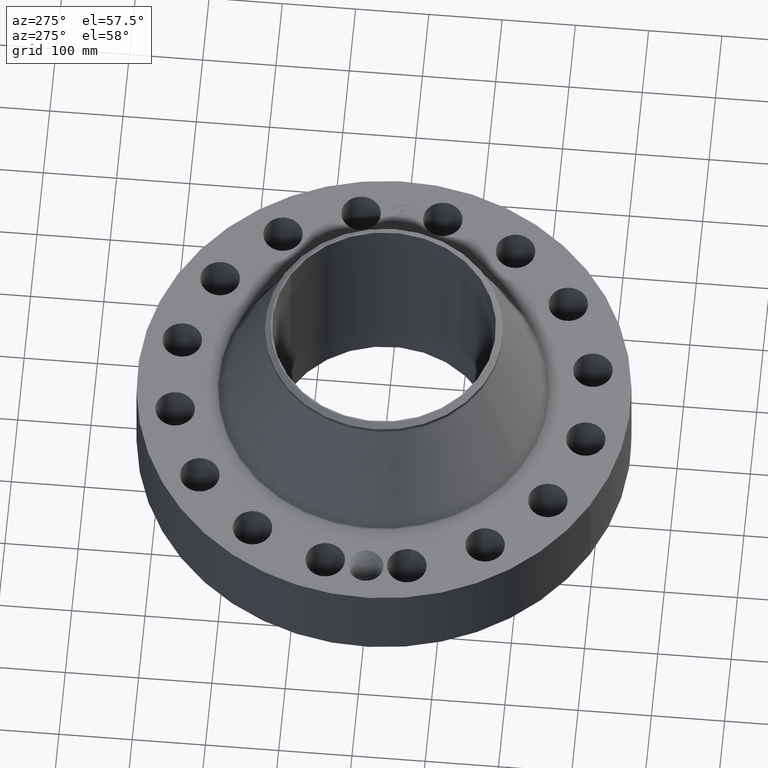
[diagram: clean part render]
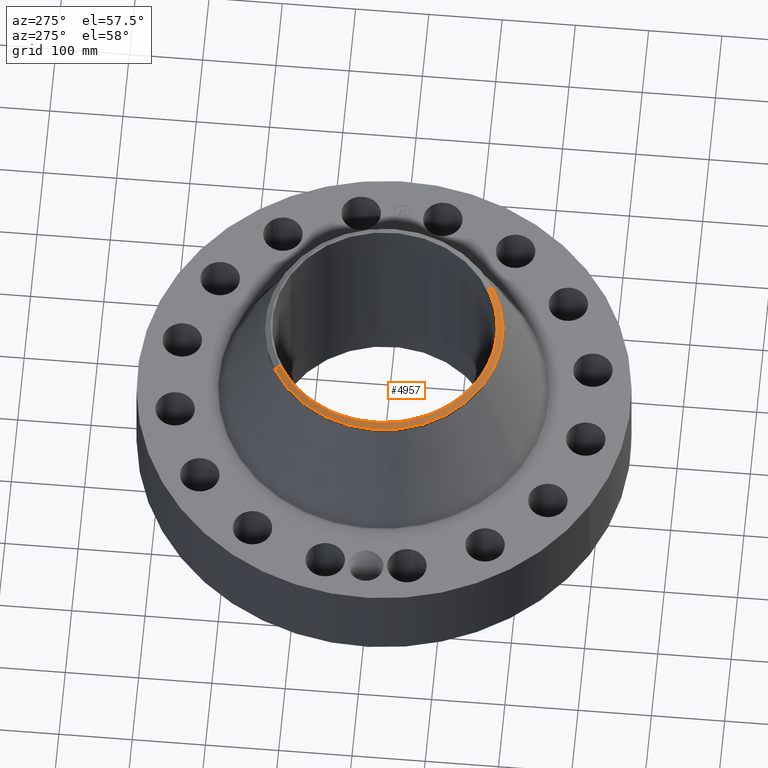
[diagram: same view with one face highlighted and labeled with its STEP entity id]
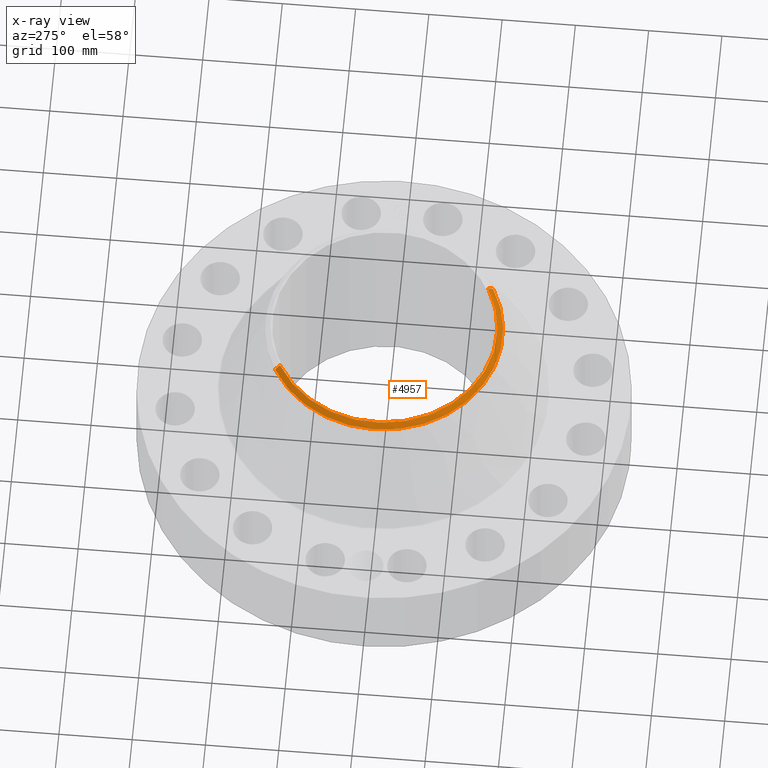
[diagram: x-ray of the same camera — body ghosted, the highlighted face saturated]
A machine part, auxiliary view. The second image highlights one B-rep face of the part: STEP entity #4957.
The next image is the same camera in x-ray: the body ghosted, the highlighted face saturated — about 0% of this face is hidden behind the body in this view.
In plain terms, the highlighted conical surface has half-angle 52.5 deg.
Its self-contained STEP definition (entity closure, byte-faithful):
#3759=AXIS2_PLACEMENT_3D('Circle Axis2P3D',#3757,#3758,$) ;
#3772=AXIS2_PLACEMENT_3D('Circle Axis2P3D',#3770,#3771,$) ;
#4574=AXIS2_PLACEMENT_3D('Circle Axis2P3D',#4572,#4573,$) ;
#4930=AXIS2_PLACEMENT_3D('Cone Axis2P3D',#4927,#4928,#4929) ;
#3740=CARTESIAN_POINT('Vertex',(-3.05633780861,-5.59458883207,11.1426718274)) ;
#3754=CARTESIAN_POINT('Vertex',(3.05633780861,-5.59458883207,11.1426718274)) ;
#3757=CARTESIAN_POINT('Axis2P3D Location',(0.,0.,11.1426718274)) ;
#3770=CARTESIAN_POINT('Axis2P3D Location',(0.,0.,11.1426718274)) ;
#3774=CARTESIAN_POINT('Vertex',(-3.05633780861,5.59458883207,11.1426718274)) ;
#4567=CARTESIAN_POINT('Vertex',(2.91430327405,-5.33459636049,11.37)) ;
#4569=CARTESIAN_POINT('Vertex',(-2.91430327405,5.33459636049,11.37)) ;
#4572=CARTESIAN_POINT('Axis2P3D Location',(0.,0.,11.37)) ;
#4927=CARTESIAN_POINT('Axis2P3D Location',(0.,0.,11.37)) ;
#4932=CARTESIAN_POINT('Line Origine',(-2.98532054133,5.46459259628,11.2563359137)) ;
#4937=CARTESIAN_POINT('Line Origine',(2.98532054133,-5.46459259628,11.2563359137)) ;
#3758=DIRECTION('Axis2P3D Direction',(0.,0.,-0.0393700787402)) ;
#3771=DIRECTION('Axis2P3D Direction',(0.,0.,-0.0393700787402)) ;
#4573=DIRECTION('Axis2P3D Direction',(0.,0.,-0.0393700787402)) ;
#4928=DIRECTION('Axis2P3D Direction',(-0.,-0.,-0.0393700787402)) ;
#4929=DIRECTION('Axis2P3D XDirection',(0.0188750212049,-0.0345504945626,0.)) ;
#4933=DIRECTION('Vector Direction',(-0.014974561121,0.02741075027,-0.023966985394)) ;
#4938=DIRECTION('Vector Direction',(0.014974561121,-0.02741075027,-0.023966985394)) ;
#4934=VECTOR('Line Direction',#4933,0.0393700787402) ;
#4939=VECTOR('Line Direction',#4938,0.0393700787402) ;
#4951=ORIENTED_EDGE('',*,*,#4941,.F.) ;
#4952=ORIENTED_EDGE('',*,*,#4576,.F.) ;
#4953=ORIENTED_EDGE('',*,*,#4936,.T.) ;
#4954=ORIENTED_EDGE('',*,*,#3776,.T.) ;
#4955=ORIENTED_EDGE('',*,*,#3761,.F.) ;
#4957=ADVANCED_FACE('PartBody',(#4956),#4931,.T.) ;
#3760=CIRCLE('generated circle',#3759,6.37500000003) ;
#3773=CIRCLE('generated circle',#3772,6.37500000003) ;
#4575=CIRCLE('generated circle',#4574,6.0787401575) ;
#4931=CONICAL_SURFACE('Cone',#4930,6.0787401575,0.916297857297) ;
#3761=EDGE_CURVE('',#3755,#3741,#3760,.T.) ;
#3776=EDGE_CURVE('',#3775,#3741,#3773,.F.) ;
#4576=EDGE_CURVE('',#4570,#4568,#4575,.F.) ;
#4936=EDGE_CURVE('',#4570,#3775,#4935,.T.) ;
#4941=EDGE_CURVE('',#4568,#3755,#4940,.T.) ;
#4950=EDGE_LOOP('',(#4951,#4952,#4953,#4954,#4955)) ;
#4956=FACE_OUTER_BOUND('',#4950,.T.) ;
#4935=LINE('Line',#4932,#4934) ;
#4940=LINE('Line',#4937,#4939) ;
#3741=VERTEX_POINT('',#3740) ;
#3755=VERTEX_POINT('',#3754) ;
#3775=VERTEX_POINT('',#3774) ;
#4568=VERTEX_POINT('',#4567) ;
#4570=VERTEX_POINT('',#4569) ;